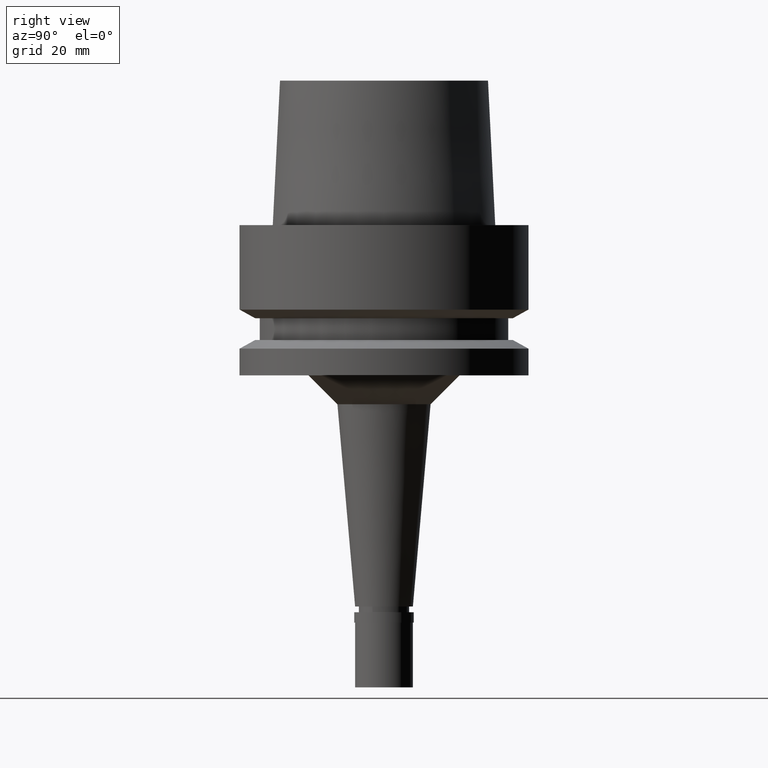
[diagram: clean part render]
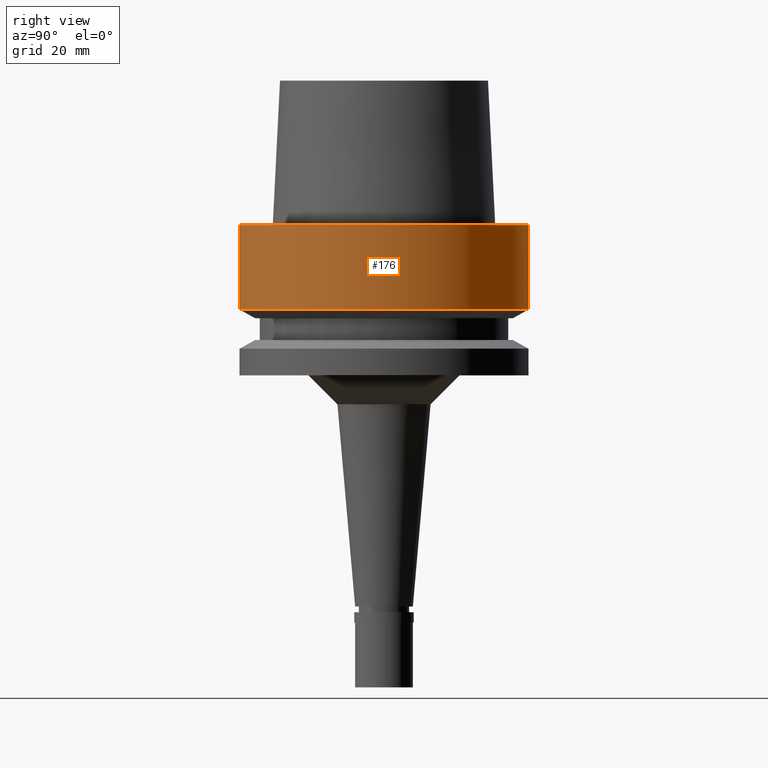
[diagram: same view with one face highlighted and labeled with its STEP entity id]
A machine part, right view. The second image highlights one B-rep face of the part: STEP entity #176.
In plain terms, the highlighted cylindrical surface (partial cylindrical patch) has radius 25 mm, axis along (0, 0, -1).
Its self-contained STEP definition (entity closure, byte-faithful):
#95 = VERTEX_POINT ( 'NONE', #1853 ) ;
#112 = CARTESIAN_POINT ( 'NONE',  ( 0.0000000000000000000, 25.00000000000000000, -3.079018521626999621E-14 ) ) ;
#152 = ORIENTED_EDGE ( 'NONE', *, *, #621, .T. ) ;
#176 = ADVANCED_FACE ( 'NONE', ( #1913 ), #2318, .T. ) ;
#203 = DIRECTION ( 'NONE',  ( 0.0000000000000000000, 1.000000000000000000, 0.0000000000000000000 ) ) ;
#325 = DIRECTION ( 'NONE',  ( 0.0000000000000000000, 0.0000000000000000000, -1.000000000000000000 ) ) ;
#339 = VERTEX_POINT ( 'NONE', #475 ) ;
#475 = CARTESIAN_POINT ( 'NONE',  ( 0.0000000000000000000, -25.00000000000000000, -14.61835441913999922 ) ) ;
#492 = LINE ( 'NONE', #112, #1843 ) ;
#505 = CIRCLE ( 'NONE', #2482, 25.00000000000000000 ) ;
#538 = ORIENTED_EDGE ( 'NONE', *, *, #1150, .T. ) ;
#542 = EDGE_CURVE ( 'NONE', #339, #2046, #1686, .T. ) ;
#621 = EDGE_CURVE ( 'NONE', #95, #1009, #505, .T. ) ;
#648 = CARTESIAN_POINT ( 'NONE',  ( 0.0000000000000000000, 0.0000000000000000000, -14.61835441913999922 ) ) ;
#858 = DIRECTION ( 'NONE',  ( 0.0000000000000000000, 0.0000000000000000000, -1.000000000000000000 ) ) ;
#922 = CARTESIAN_POINT ( 'NONE',  ( 0.0000000000000000000, 25.00000000000000000, -14.61835441913999922 ) ) ;
#973 = ORIENTED_EDGE ( 'NONE', *, *, #542, .T. ) ;
#1009 = VERTEX_POINT ( 'NONE', #2547 ) ;
#1064 = LINE ( 'NONE', #2079, #1911 ) ;
#1071 = DIRECTION ( 'NONE',  ( 0.0000000000000000000, -1.000000000000000000, 0.0000000000000000000 ) ) ;
#1150 = EDGE_CURVE ( 'NONE', #1009, #339, #1064, .T. ) ;
#1272 = DIRECTION ( 'NONE',  ( 0.0000000000000000000, -1.000000000000000000, 0.0000000000000000000 ) ) ;
#1469 = CARTESIAN_POINT ( 'NONE',  ( 0.0000000000000000000, 0.0000000000000000000, 30.06500000000000128 ) ) ;
#1686 = CIRCLE ( 'NONE', #2314, 25.00000000000000000 ) ;
#1824 = ORIENTED_EDGE ( 'NONE', *, *, #2579, .F. ) ;
#1843 = VECTOR ( 'NONE', #325, 1000.000000000000000 ) ;
#1853 = CARTESIAN_POINT ( 'NONE',  ( 0.0000000000000000000, 25.00000000000000000, -3.079018521626999621E-14 ) ) ;
#1911 = VECTOR ( 'NONE', #2090, 1000.000000000000000 ) ;
#1913 = FACE_OUTER_BOUND ( 'NONE', #2451, .T. ) ;
#2046 = VERTEX_POINT ( 'NONE', #922 ) ;
#2079 = CARTESIAN_POINT ( 'NONE',  ( 0.0000000000000000000, -25.00000000000000000, -3.079018521626999621E-14 ) ) ;
#2090 = DIRECTION ( 'NONE',  ( 0.0000000000000000000, 0.0000000000000000000, -1.000000000000000000 ) ) ;
#2108 = AXIS2_PLACEMENT_3D ( 'NONE', #1469, #2503, #1071 ) ;
#2289 = DIRECTION ( 'NONE',  ( 0.0000000000000000000, 0.0000000000000000000, 1.000000000000000000 ) ) ;
#2314 = AXIS2_PLACEMENT_3D ( 'NONE', #648, #2289, #1272 ) ;
#2318 = CYLINDRICAL_SURFACE ( 'NONE', #2108, 25.00000000000000000 ) ;
#2451 = EDGE_LOOP ( 'NONE', ( #152, #538, #973, #1824 ) ) ;
#2482 = AXIS2_PLACEMENT_3D ( 'NONE', #2672, #858, #203 ) ;
#2503 = DIRECTION ( 'NONE',  ( 0.0000000000000000000, 0.0000000000000000000, -1.000000000000000000 ) ) ;
#2547 = CARTESIAN_POINT ( 'NONE',  ( 0.0000000000000000000, -25.00000000000000000, -4.618527782440999569E-14 ) ) ;
#2579 = EDGE_CURVE ( 'NONE', #95, #2046, #492, .T. ) ;
#2672 = CARTESIAN_POINT ( 'NONE',  ( 0.0000000000000000000, 0.0000000000000000000, -4.618527782440999569E-14 ) ) ;